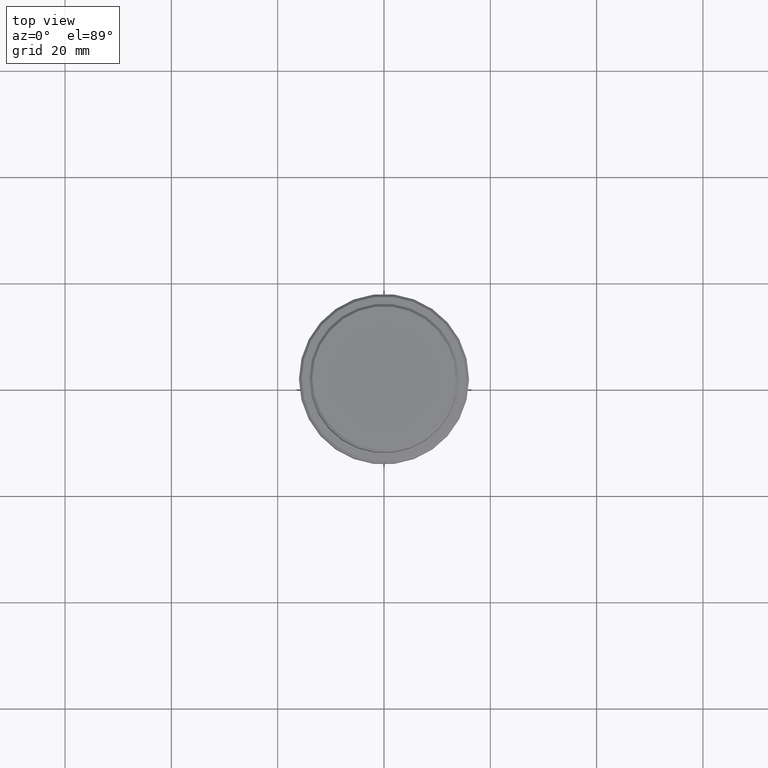
[diagram: clean part render]
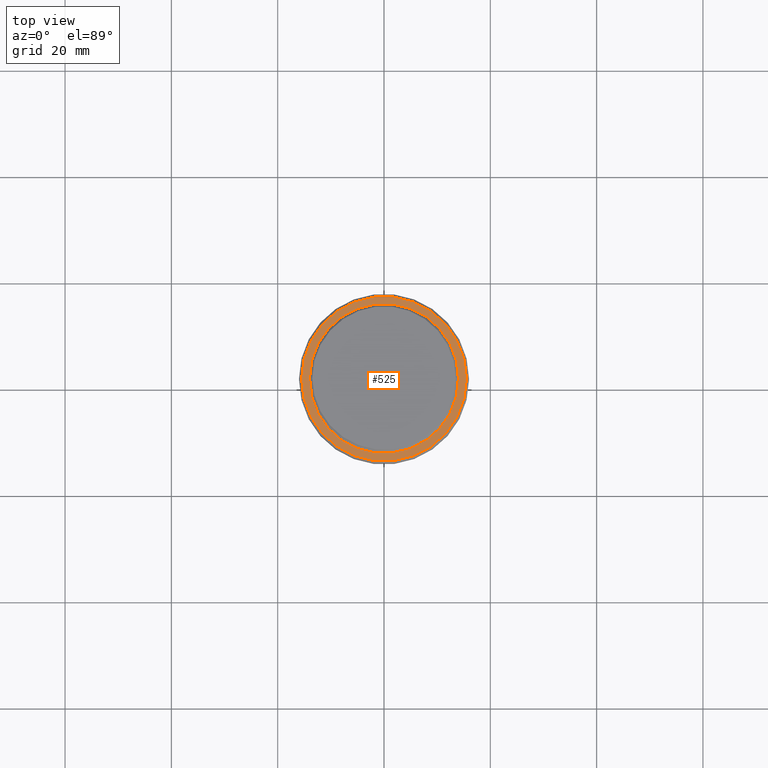
[diagram: same view with one face highlighted and labeled with its STEP entity id]
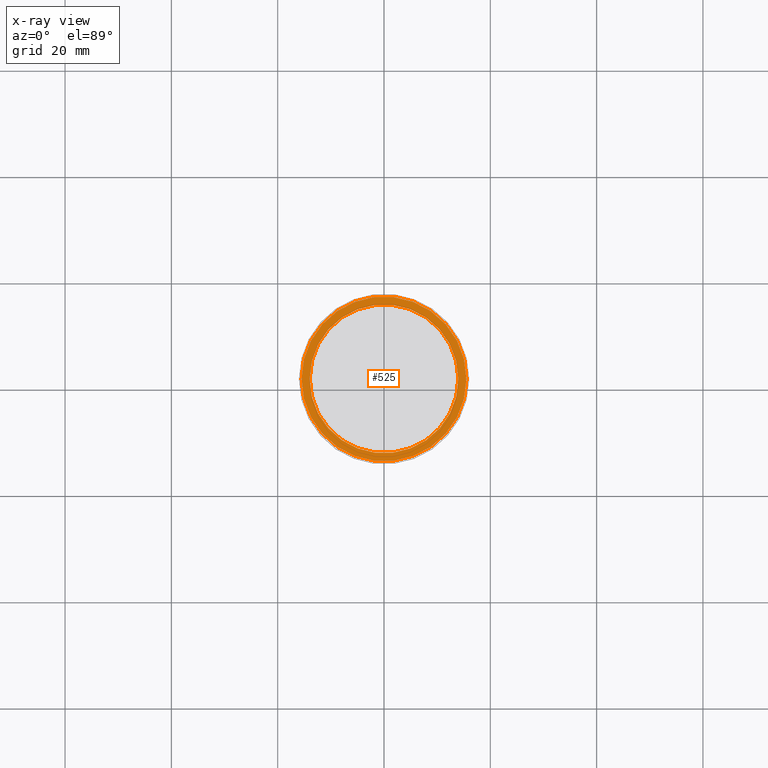
[diagram: x-ray of the same camera — body ghosted, the highlighted face saturated]
A machine part, top view. The second image highlights one B-rep face of the part: STEP entity #525.
The next image is the same camera in x-ray: the body ghosted, the highlighted face saturated — about 0% of this face is hidden behind the body in this view.
In plain terms, the highlighted planar face has unit normal (0, -0, 1).
Its self-contained STEP definition (entity closure, byte-faithful):
#14 = ORIENTED_EDGE ( 'NONE', *, *, #1029, .T. ) ;
#43 = CARTESIAN_POINT ( 'NONE',  ( 13.99999999999998224, 0.000000000000000000, -9.999999999999998224 ) ) ;
#73 = VERTEX_POINT ( 'NONE', #597 ) ;
#186 = PLANE ( 'NONE',  #904 ) ;
#215 = CARTESIAN_POINT ( 'NONE',  ( 0.000000000000000000, 0.000000000000000000, -9.999999999999998224 ) ) ;
#297 = VERTEX_POINT ( 'NONE', #903 ) ;
#321 = CARTESIAN_POINT ( 'NONE',  ( 0.000000000000000000, 0.000000000000000000, -9.999999999999998224 ) ) ;
#362 = CIRCLE ( 'NONE', #1305, 15.49999999999998579 ) ;
#363 = EDGE_LOOP ( 'NONE', ( #1155, #14 ) ) ;
#372 = DIRECTION ( 'NONE',  ( 0.000000000000000000, 0.000000000000000000, -1.000000000000000000 ) ) ;
#383 = VERTEX_POINT ( 'NONE', #43 ) ;
#401 = AXIS2_PLACEMENT_3D ( 'NONE', #1357, #372, #801 ) ;
#486 = DIRECTION ( 'NONE',  ( -0.000000000000000000, -0.000000000000000000, 1.000000000000000000 ) ) ;
#525 = ADVANCED_FACE ( 'NONE', ( #828, #586 ), #186, .T. ) ;
#555 = AXIS2_PLACEMENT_3D ( 'NONE', #1165, #486, #827 ) ;
#558 = DIRECTION ( 'NONE',  ( 1.000000000000000000, 0.000000000000000000, 0.000000000000000000 ) ) ;
#562 = ORIENTED_EDGE ( 'NONE', *, *, #1011, .T. ) ;
#574 = CIRCLE ( 'NONE', #715, 13.99999999999998224 ) ;
#577 = DIRECTION ( 'NONE',  ( -0.000000000000000000, -0.000000000000000000, 1.000000000000000000 ) ) ;
#586 = FACE_BOUND ( 'NONE', #818, .T. ) ;
#597 = CARTESIAN_POINT ( 'NONE',  ( 15.49999999999998579, 1.928818708657079372E-15, -9.999999999999998224 ) ) ;
#687 = CARTESIAN_POINT ( 'NONE',  ( 0.000000000000000000, 13.49999999999998224, -9.999999999999998224 ) ) ;
#711 = ORIENTED_EDGE ( 'NONE', *, *, #743, .T. ) ;
#715 = AXIS2_PLACEMENT_3D ( 'NONE', #321, #855, #1313 ) ;
#743 = EDGE_CURVE ( 'NONE', #383, #1350, #955, .T. ) ;
#801 = DIRECTION ( 'NONE',  ( 1.000000000000000000, 0.000000000000000000, 0.000000000000000000 ) ) ;
#818 = EDGE_LOOP ( 'NONE', ( #711, #562 ) ) ;
#827 = DIRECTION ( 'NONE',  ( 1.000000000000000000, 0.000000000000000000, 0.000000000000000000 ) ) ;
#828 = FACE_OUTER_BOUND ( 'NONE', #363, .T. ) ;
#855 = DIRECTION ( 'NONE',  ( 0.000000000000000000, 0.000000000000000000, -1.000000000000000000 ) ) ;
#903 = CARTESIAN_POINT ( 'NONE',  ( -15.49999999999998579, 0.000000000000000000, -9.999999999999998224 ) ) ;
#904 = AXIS2_PLACEMENT_3D ( 'NONE', #687, #1035, #1135 ) ;
#955 = CIRCLE ( 'NONE', #401, 13.99999999999998224 ) ;
#1011 = EDGE_CURVE ( 'NONE', #1350, #383, #574, .T. ) ;
#1029 = EDGE_CURVE ( 'NONE', #73, #297, #362, .T. ) ;
#1035 = DIRECTION ( 'NONE',  ( 0.000000000000000000, -0.000000000000000000, 1.000000000000000000 ) ) ;
#1125 = EDGE_CURVE ( 'NONE', #297, #73, #1185, .T. ) ;
#1135 = DIRECTION ( 'NONE',  ( 1.000000000000000000, 0.000000000000000000, 0.000000000000000000 ) ) ;
#1155 = ORIENTED_EDGE ( 'NONE', *, *, #1125, .T. ) ;
#1165 = CARTESIAN_POINT ( 'NONE',  ( 0.000000000000000000, 0.000000000000000000, -9.999999999999998224 ) ) ;
#1185 = CIRCLE ( 'NONE', #555, 15.49999999999998579 ) ;
#1217 = CARTESIAN_POINT ( 'NONE',  ( -13.99999999999998224, 1.714505518806292469E-15, -9.999999999999998224 ) ) ;
#1305 = AXIS2_PLACEMENT_3D ( 'NONE', #215, #577, #558 ) ;
#1313 = DIRECTION ( 'NONE',  ( 1.000000000000000000, 0.000000000000000000, 0.000000000000000000 ) ) ;
#1350 = VERTEX_POINT ( 'NONE', #1217 ) ;
#1357 = CARTESIAN_POINT ( 'NONE',  ( 0.000000000000000000, 0.000000000000000000, -9.999999999999998224 ) ) ;